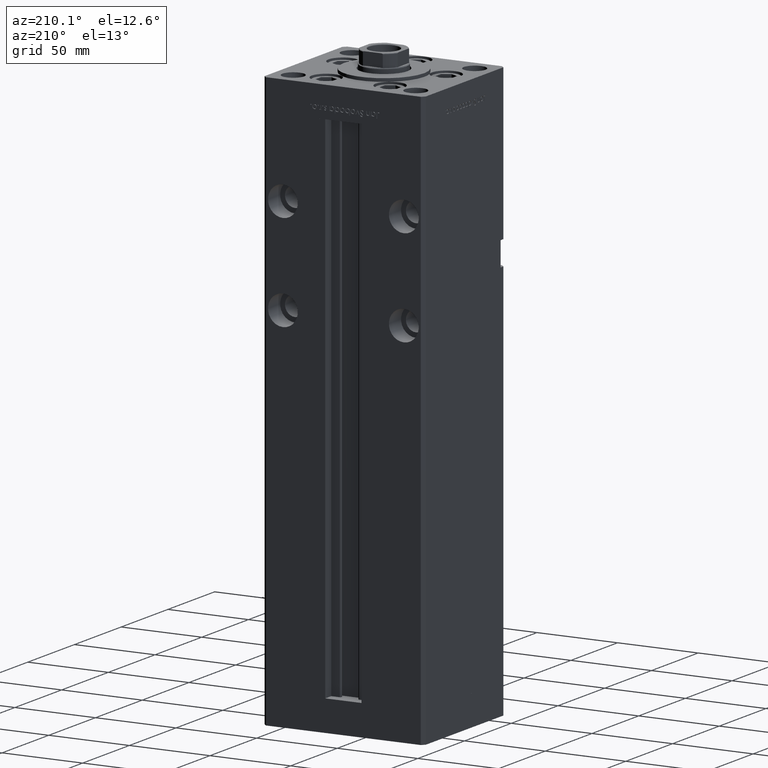
[diagram: clean part render]
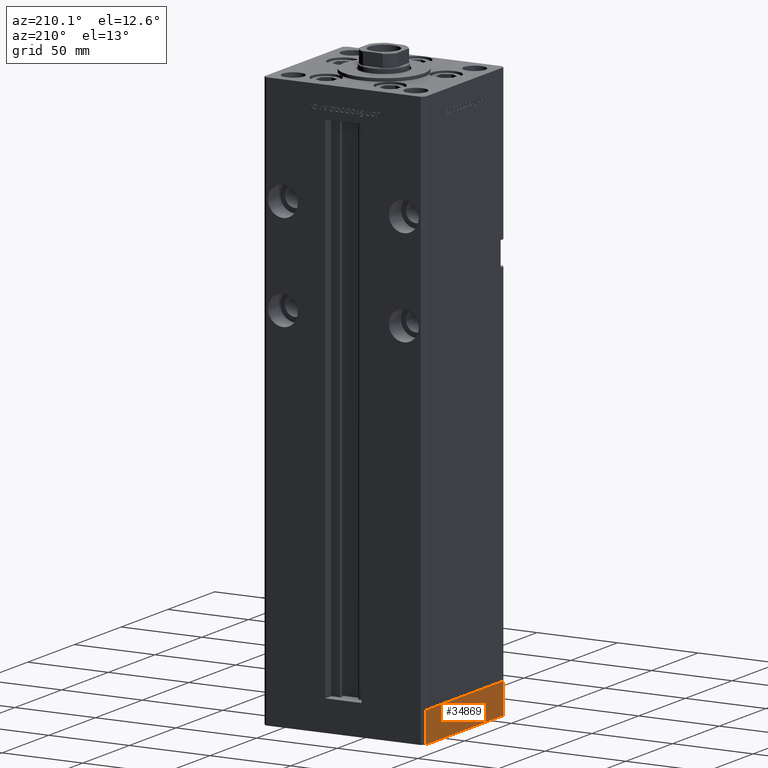
[diagram: same view with one face highlighted and labeled with its STEP entity id]
A machine part, auxiliary view. The second image highlights one B-rep face of the part: STEP entity #34869.
In plain terms, the highlighted planar face has unit normal (-1, -0, 0).
Its self-contained STEP definition (entity closure, byte-faithful):
#580 = LINE ( 'NONE', #24784, #43556 ) ;
#2796 = CARTESIAN_POINT ( 'NONE',  ( 50.00000000000000000, -41.49999999999999289, -19.00000000000000000 ) ) ;
#3523 = ORIENTED_EDGE ( 'NONE', *, *, #32879, .F. ) ;
#5198 = CARTESIAN_POINT ( 'NONE',  ( 49.99999999999992184, 41.49999999999998579, -19.00000000000000000 ) ) ;
#6469 = DIRECTION ( 'NONE',  ( 0.000000000000000000, 0.000000000000000000, 1.000000000000000000 ) ) ;
#8958 = VERTEX_POINT ( 'NONE', #20634 ) ;
#9737 = VECTOR ( 'NONE', #37979, 1000.000000000000000 ) ;
#11637 = FACE_OUTER_BOUND ( 'NONE', #43774, .T. ) ;
#13975 = VERTEX_POINT ( 'NONE', #17303 ) ;
#15107 = EDGE_CURVE ( 'NONE', #8958, #13975, #25630, .T. ) ;
#15400 = PLANE ( 'NONE',  #25614 ) ;
#17303 = CARTESIAN_POINT ( 'NONE',  ( 49.99999999999992184, 41.49999999999998579, 0.000000000000000000 ) ) ;
#18847 = ORIENTED_EDGE ( 'NONE', *, *, #22276, .F. ) ;
#19092 = LINE ( 'NONE', #27155, #33099 ) ;
#19179 = DIRECTION ( 'NONE',  ( 1.000000000000000000, 1.003213576468515193E-15, -0.000000000000000000 ) ) ;
#20634 = CARTESIAN_POINT ( 'NONE',  ( 49.99999999999992184, 41.49999999999998579, -19.00000000000000000 ) ) ;
#21187 = LINE ( 'NONE', #49665, #51241 ) ;
#22276 = EDGE_CURVE ( 'NONE', #24911, #22436, #19092, .T. ) ;
#22436 = VERTEX_POINT ( 'NONE', #33328 ) ;
#24784 = CARTESIAN_POINT ( 'NONE',  ( 50.00000000000000000, -41.49999999999999289, 0.000000000000000000 ) ) ;
#24911 = VERTEX_POINT ( 'NONE', #34270 ) ;
#25614 = AXIS2_PLACEMENT_3D ( 'NONE', #2796, #19179, #43369 ) ;
#25630 = LINE ( 'NONE', #5198, #9737 ) ;
#26422 = EDGE_CURVE ( 'NONE', #24911, #8958, #21187, .T. ) ;
#27155 = CARTESIAN_POINT ( 'NONE',  ( 50.00000000000000000, -41.49999999999999289, -19.00000000000000000 ) ) ;
#28810 = DIRECTION ( 'NONE',  ( -1.003213576468515193E-15, 1.000000000000000000, 0.000000000000000000 ) ) ;
#29251 = DIRECTION ( 'NONE',  ( -1.003213576468515193E-15, 1.000000000000000000, 0.000000000000000000 ) ) ;
#32879 = EDGE_CURVE ( 'NONE', #22436, #13975, #580, .T. ) ;
#33099 = VECTOR ( 'NONE', #6469, 1000.000000000000000 ) ;
#33328 = CARTESIAN_POINT ( 'NONE',  ( 50.00000000000000000, -41.49999999999999289, 0.000000000000000000 ) ) ;
#34270 = CARTESIAN_POINT ( 'NONE',  ( 50.00000000000000000, -41.49999999999999289, -19.00000000000000000 ) ) ;
#34869 = ADVANCED_FACE ( 'NONE', ( #11637 ), #15400, .T. ) ;
#37847 = ORIENTED_EDGE ( 'NONE', *, *, #15107, .T. ) ;
#37979 = DIRECTION ( 'NONE',  ( 0.000000000000000000, 0.000000000000000000, 1.000000000000000000 ) ) ;
#39468 = ORIENTED_EDGE ( 'NONE', *, *, #26422, .T. ) ;
#43369 = DIRECTION ( 'NONE',  ( -1.003213576468515193E-15, 1.000000000000000000, 0.000000000000000000 ) ) ;
#43556 = VECTOR ( 'NONE', #28810, 1000.000000000000000 ) ;
#43774 = EDGE_LOOP ( 'NONE', ( #3523, #18847, #39468, #37847 ) ) ;
#49665 = CARTESIAN_POINT ( 'NONE',  ( 50.00000000000000000, -41.49999999999999289, -19.00000000000000000 ) ) ;
#51241 = VECTOR ( 'NONE', #29251, 1000.000000000000000 ) ;